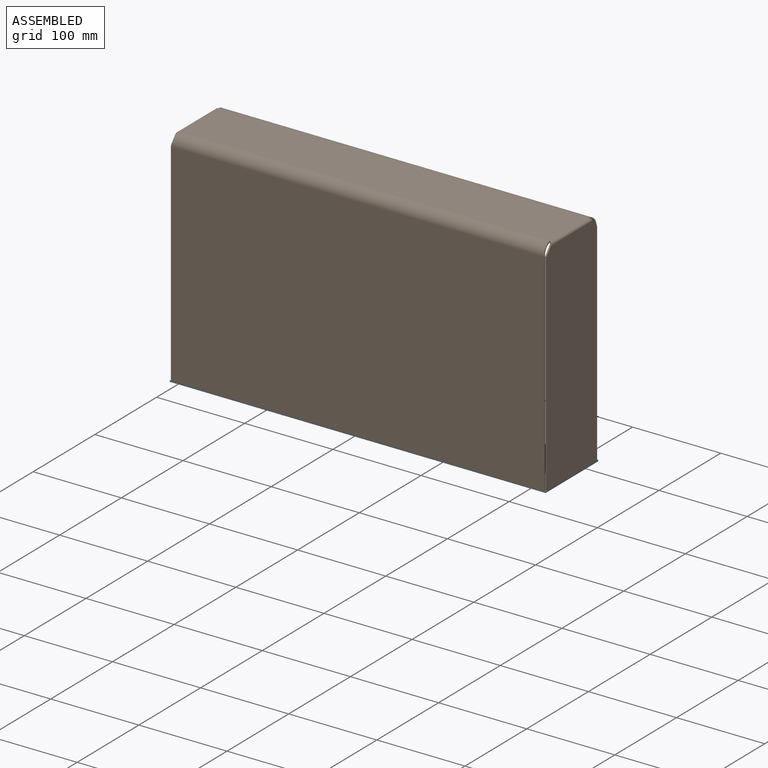
[diagram: assembled view]
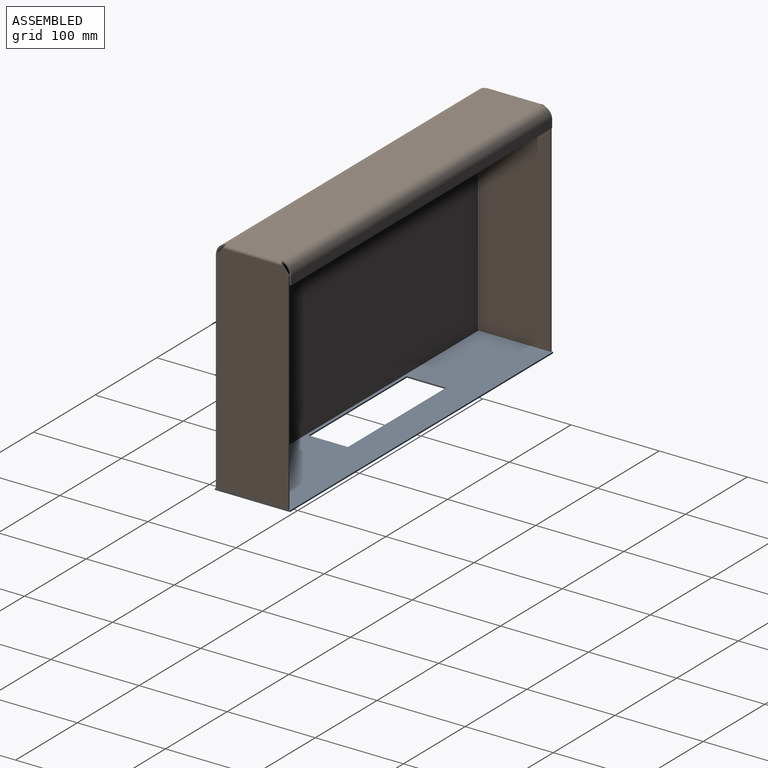
[diagram: assembled view, second angle]
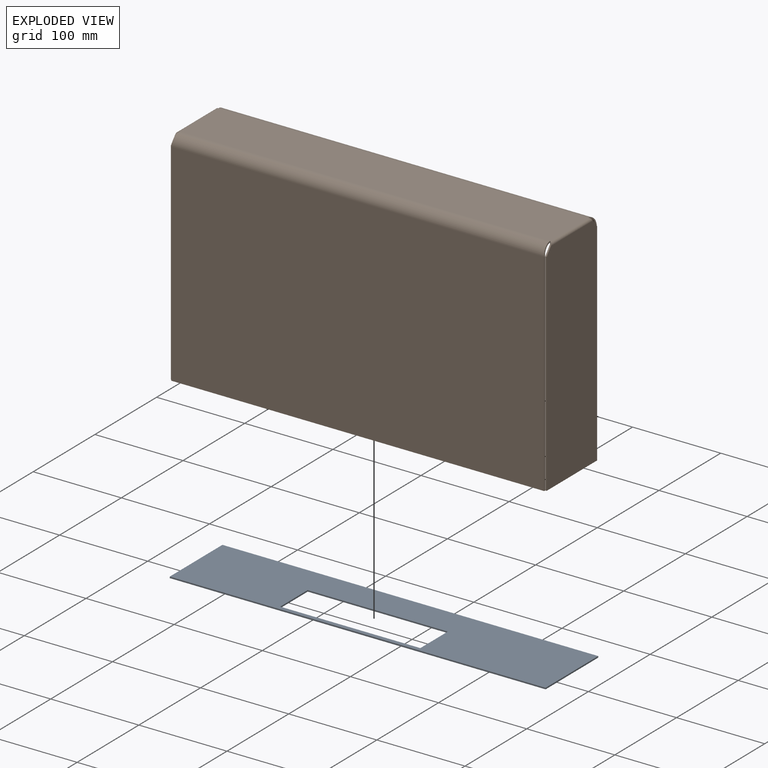
[diagram: exploded view]
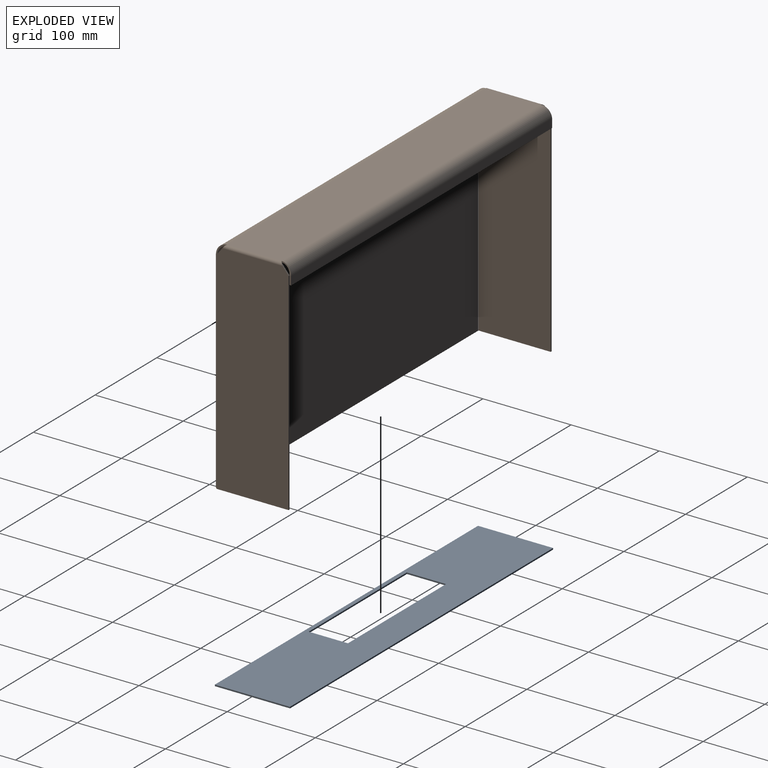
[diagram: exploded view, second angle]
ASSEMBLY  parts=2 mates=4
PART A: 10 faces, bbox 426.4x85.2x1.6 mm
  f0: plane 85.2x1.6mm, normal (-1,0,0), area 136.3mm2, adj f1,f3,f4,f5
  f1: plane 426.4x1.6mm, normal (0,1,0), area 682.2mm2, adj f0,f2,f4,f5
  f2: plane 85.2x1.6mm, normal (1,0,0), area 136.3mm2, adj f1,f3,f4,f5
  f3: plane 426.4x1.6mm, normal (0,-1,0), area 682.2mm2, adj f0,f2,f4,f5
  f4: plane 426.4x85.2mm, normal (0,0,-1), area 29253.8mm2, adj f0,f1,f2,f3,f6,f7,f8,f9
  f5: plane 426.4x85.2mm, normal (0,0,1), area 29253.8mm2, adj f0,f1,f2,f3,f6,f7,f8,f9
  f6: plane 44.5x1.6mm, normal (1,0,0), area 71.2mm2, adj f4,f5,f7,f9
  f7: plane 159x1.6mm, normal (0,-1,0), area 254.4mm2, adj f4,f5,f6,f8
  f8: plane 44.5x1.6mm, normal (-1,0,0), area 71.2mm2, adj f4,f5,f7,f9
  f9: plane 159x1.6mm, normal (0,1,0), area 254.4mm2, adj f4,f5,f6,f8
PART B: 42 faces, bbox 426.4x85.2x251.6 mm
  f0: plane 420x62mm, normal (0,0,-1), area 26040mm2, adj f11,f20,f29,f33
  f1: plane 420x62mm, normal (0,0,1), area 26040mm2, adj f12,f21,f30,f34
  f2: plane 240.09x1.6mm, normal (0,-1,0), area 384.1mm2, adj f4,f5,f6,f7
  f3: plane 240.09x1.6mm, normal (0,1,0), area 384.1mm2, adj f4,f5,f7,f8
  f4: plane 81.86x1.6mm, normal (0,0,-1), area 131mm2, adj f2,f3,f5,f7
  f5: plane 248.4x81.86mm, normal (1,0,0), area 20276.9mm2, adj f2,f3,f4,f6,f8,f11
  f6: plane 8.31x6.83mm, normal (0,-0.77,0.63), area 17.2mm2, adj f2,f5,f7,f10
  f7: plane 248.4x81.86mm, normal (-1,0,0), area 20276.9mm2, adj f2,f3,f4,f6,f8,f12
  f8: plane 8.31x6.83mm, normal (0,0.77,0.63), area 17.2mm2, adj f3,f5,f7,f9
  f9: bspline ~3.22x3.22mm, area 7.8mm2, adj f8,f11,f12,f27
  f10: bspline ~3.22x3.22mm, area 7.8mm2, adj f6,f11,f12,f18
  f11: cylinder r=1.6mm len=68.2mm, axis (0,-1,0), area 163.6mm2, adj f0,f5,f9,f10
  f12: cylinder r=3.2mm len=68.2mm, axis (0,-1,0), area 327.2mm2, adj f1,f7,f9,f10
  f13: plane 423.06x1.6mm, normal (0,0,-1), area 676.9mm2, adj f14,f15,f16,f17
  f14: plane 423.06x240mm, normal (0,1,0), area 101534.1mm2, adj f13,f15,f17,f20
  f15: plane 240x1.6mm, normal (1,0,0), area 384mm2, adj f13,f14,f16,f19
  f16: plane 423.06x240mm, normal (0,-1,0), area 101534.1mm2, adj f13,f15,f17,f21
  f17: plane 240x1.6mm, normal (-1,0,0), area 384mm2, adj f13,f14,f16,f18
  f18: bspline ~11.6x11.6mm, area 27.3mm2, adj f10,f17,f20,f21
  f19: bspline ~11.62x11.62mm, area 27.3mm2, adj f15,f20,f21,f31
  f20: cylinder r=10mm len=423.06mm, axis (1,0,0), area 6621.4mm2, adj f0,f14,f18,f19
  f21: cylinder r=11.6mm len=423.06mm, axis (1,0,0), area 7680.8mm2, adj f1,f16,f18,f19
  f22: plane 423.06x1.6mm, normal (0,0,-1), area 676.9mm2, adj f23,f24,f25,f26
  f23: plane 423.06x10mm, normal (0,-1,0), area 4230.6mm2, adj f22,f24,f26,f29
  f24: plane 10x1.6mm, normal (-1,0,0), area 16mm2, adj f22,f23,f25,f27
  f25: plane 423.06x10mm, normal (0,1,0), area 4230.6mm2, adj f22,f24,f26,f30
  f26: plane 10x1.6mm, normal (1,0,0), area 16mm2, adj f22,f23,f25,f28
  f27: bspline ~11.6x11.6mm, area 27.3mm2, adj f9,f24,f29,f30
  f28: bspline ~11.6x11.6mm, area 27.3mm2, adj f26,f29,f30,f32
  f29: cylinder r=10mm len=423.06mm, axis (-1,0,0), area 6621.4mm2, adj f0,f23,f27,f28
  f30: cylinder r=11.6mm len=423.06mm, axis (-1,0,0), area 7680.8mm2, adj f1,f25,f27,f28
  f31: bspline ~3.2x3.2mm, area 7.8mm2, adj f19,f33,f34,f41
  f32: bspline ~3.2x3.2mm, area 7.8mm2, adj f28,f33,f34,f39
  f33: cylinder r=1.6mm len=68.2mm, axis (0,-1,0), area 163.6mm2, adj f0,f31,f32,f38
  f34: cylinder r=3.2mm len=68.2mm, axis (0,-1,0), area 327.2mm2, adj f1,f31,f32,f40
  f35: plane 240.09x1.6mm, normal (0,1,0), area 384.1mm2, adj f37,f38,f39,f40
  f36: plane 240.09x1.6mm, normal (0,-1,0), area 384.1mm2, adj f37,f38,f40,f41
  f37: plane 81.86x1.6mm, normal (0,0,-1), area 131mm2, adj f35,f36,f38,f40
  f38: plane 248.4x81.86mm, normal (-1,0,0), area 20276.9mm2, adj f33,f35,f36,f37,f39,f41
  f39: plane 8.31x6.83mm, normal (0,0.77,0.63), area 17.2mm2, adj f32,f35,f38,f40
  f40: plane 248.4x81.86mm, normal (1,0,0), area 20276.9mm2, adj f34,f35,f36,f37,f39,f41
  f41: plane 8.31x6.83mm, normal (0,-0.77,0.63), area 17.2mm2, adj f31,f36,f38,f40
PLACE A rot(axis=(0.59,0.65,0.48),0deg) t=(-252.43,-32.12,-142.47)mm
PLACE B rot(axis=(0.59,0.65,0.48),0deg) t=(-249.23,-30.52,-142.47)mm
MATE parallel A.f5 <-> B.f13  axis (0,0,1) through (173.97,53.08,-142.47)mm
MATE planar B.f7 <-> A.f0  axis (-1,0,0) through (-252.43,10.48,-18.61)mm
MATE planar B.f13 <-> A.f5  axis (0,0,-1) through (-39.23,-31.32,-142.47)mm
MATE planar A.f3 <-> B.f16  axis (0,-1,0) through (-39.23,-32.12,-143.27)mm
